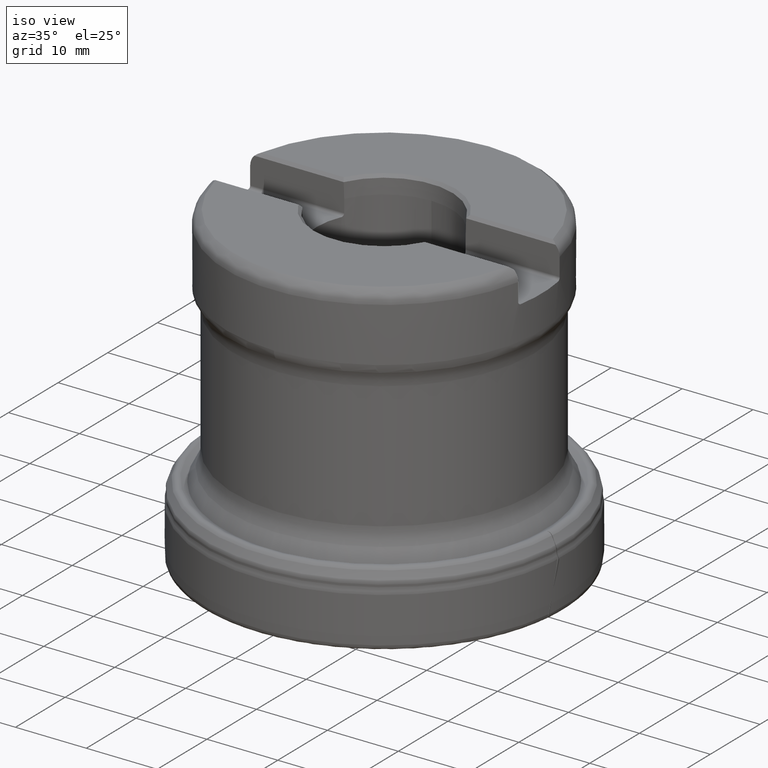
[diagram: clean part render]
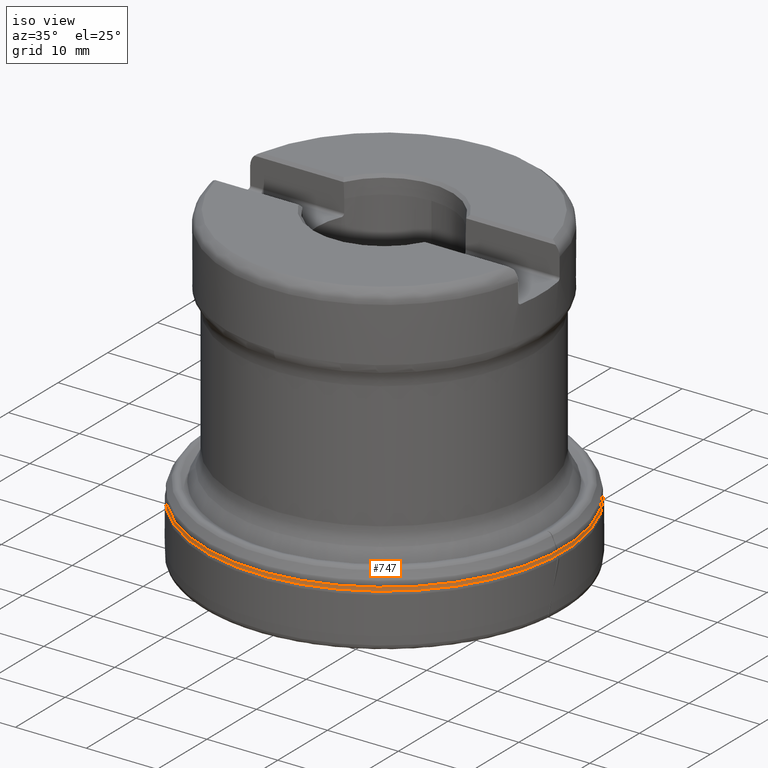
[diagram: same view with one face highlighted and labeled with its STEP entity id]
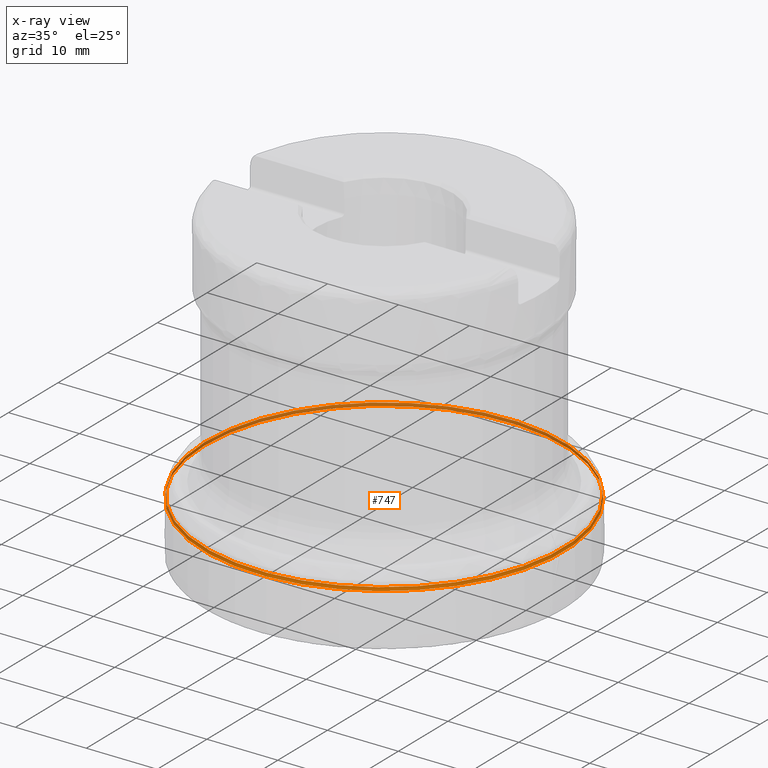
[diagram: x-ray of the same camera — body ghosted, the highlighted face saturated]
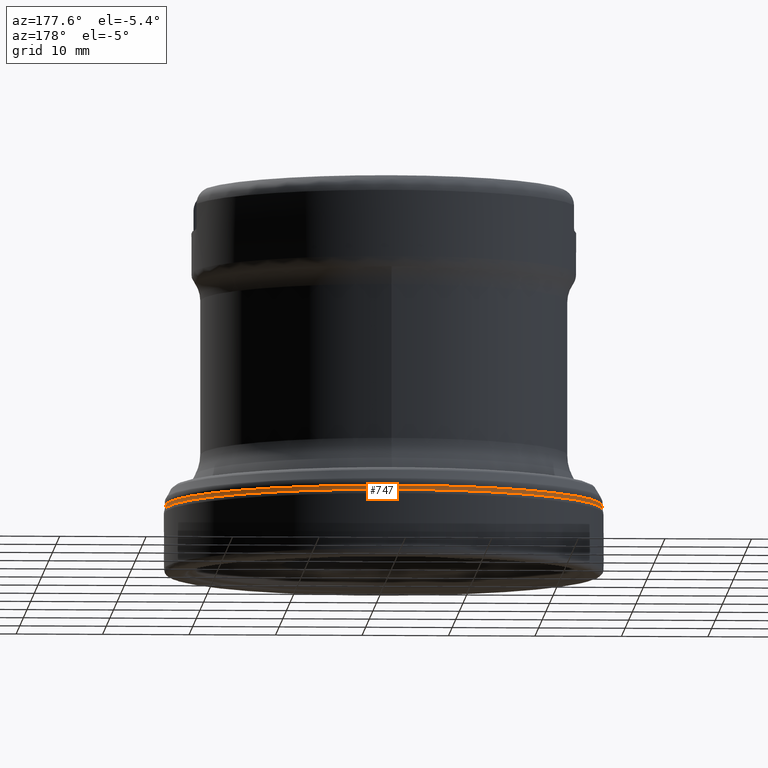
[diagram: same view with one face highlighted and labeled with its STEP entity id]
A machine part, iso view. The second image highlights one B-rep face of the part: STEP entity #747.
The next image is the same camera in x-ray: the body ghosted, the highlighted face saturated — about 39% of this face is hidden behind the body in this view.
A second angle (auxiliary view) of the same face is appended — the face is thin or edge-on in the first view.
In plain terms, the highlighted face is a SurfaceOfRevolution surface.
Its self-contained STEP definition (entity closure, byte-faithful):
#119=SURFACE_OF_REVOLUTION('',#2772,#142);
#142=AXIS1_PLACEMENT('',#7471,#3632);
#347=FACE_BOUND('',#1099,.T.);
#348=FACE_BOUND('',#1100,.T.);
#747=ADVANCED_FACE('',(#347,#348),#119,.F.);
#1099=EDGE_LOOP('',(#1946));
#1100=EDGE_LOOP('',(#1947));
#1225=CIRCLE('',#3036,25.2663743154343);
#1226=CIRCLE('',#3037,25.331063127091);
#1946=ORIENTED_EDGE('',*,*,#2579,.T.);
#1947=ORIENTED_EDGE('',*,*,#2580,.F.);
#2212=VERTEX_POINT('',#7455);
#2213=VERTEX_POINT('',#7464);
#2579=EDGE_CURVE('',#2212,#2212,#1225,.T.);
#2580=EDGE_CURVE('',#2213,#2213,#1226,.T.);
#2772=B_SPLINE_CURVE_WITH_KNOTS('',5,(#7465,#7466,#7467,#7468,#7469,#7470),
 .UNSPECIFIED.,.F.,.F.,(6,6),(0.,1.),.UNSPECIFIED.);
#3036=AXIS2_PLACEMENT_3D('',#7454,#3627,#3628);
#3037=AXIS2_PLACEMENT_3D('',#7463,#3630,#3631);
#3627=DIRECTION('',(0.,0.,-1.));
#3628=DIRECTION('',(-1.,0.,0.));
#3630=DIRECTION('',(0.,0.,-1.));
#3631=DIRECTION('',(-1.,0.,0.));
#3632=DIRECTION('',(0.,0.,-1.));
#7454=CARTESIAN_POINT('',(0.,0.,8.08768559582732));
#7455=CARTESIAN_POINT('',(-25.2663743154343,0.,8.08768559582732));
#7463=CARTESIAN_POINT('',(0.,0.,7.60633527345221));
#7464=CARTESIAN_POINT('',(-25.331063127091,0.,7.60633527345221));
#7465=CARTESIAN_POINT('',(25.331058953129,8.67361737988404E-16,7.60633803827341));
#7466=CARTESIAN_POINT('',(25.3048815050548,8.67361737988404E-16,7.70003336372419));
#7467=CARTESIAN_POINT('',(25.2856752663944,8.67361737988403E-16,7.79567914895031));
#7468=CARTESIAN_POINT('',(25.2729629623639,-3.46944695195362E-15,7.89255440232192));
#7469=CARTESIAN_POINT('',(25.2666024122067,-3.46944695195362E-15,7.99011501809593));
#7470=CARTESIAN_POINT('',(25.2663743154343,-3.46944695195362E-15,8.08768559582732));
#7471=CARTESIAN_POINT('',(0.,0.,0.));